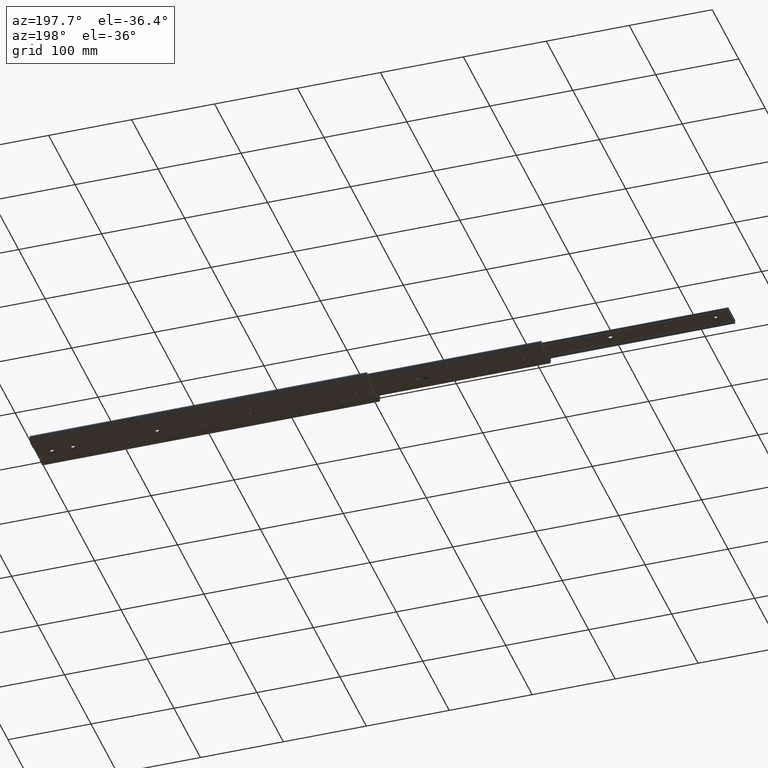
[diagram: clean part render]
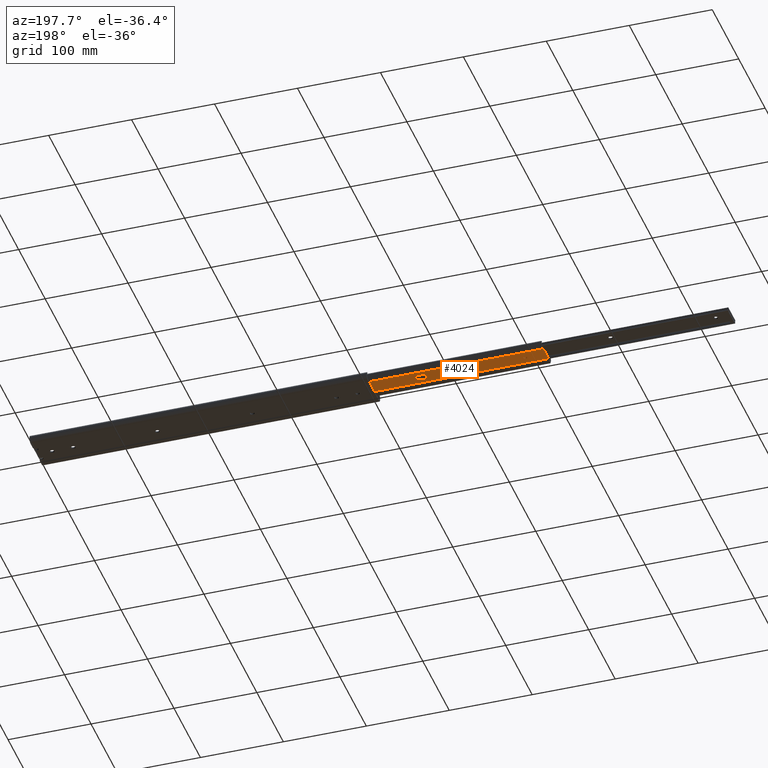
[diagram: same view with one face highlighted and labeled with its STEP entity id]
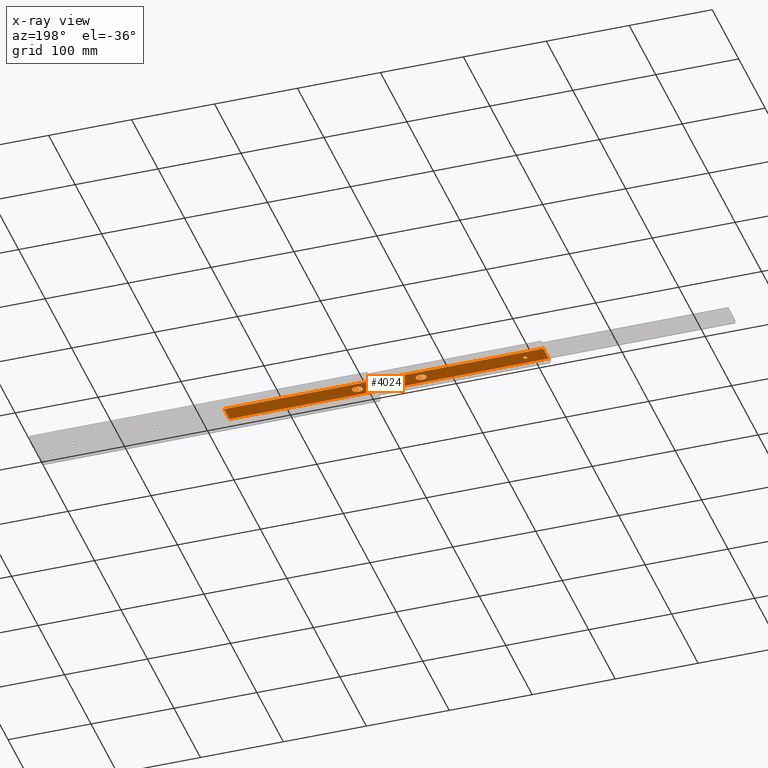
[diagram: x-ray of the same camera — body ghosted, the highlighted face saturated]
A machine part, auxiliary view. The second image highlights one B-rep face of the part: STEP entity #4024.
The next image is the same camera in x-ray: the body ghosted, the highlighted face saturated — about 0% of this face is hidden behind the body in this view.
In plain terms, the highlighted planar face has unit normal (0, -0, -1).
Its self-contained STEP definition (entity closure, byte-faithful):
#1 = DIRECTION ( 'NONE',  ( 0.0000000000000000000, -1.807003620809173600E-016, -1.000000000000000000 ) ) ;
#46 = EDGE_CURVE ( 'NONE', #221, #5983, #4062, .T. ) ;
#142 = VECTOR ( 'NONE', #5529, 1000.000000000000000 ) ;
#157 = EDGE_CURVE ( 'NONE', #5278, #4433, #1713, .T. ) ;
#180 = ORIENTED_EDGE ( 'NONE', *, *, #186, .F. ) ;
#186 = EDGE_CURVE ( 'NONE', #4433, #5344, #1522, .T. ) ;
#208 = DIRECTION ( 'NONE',  ( 0.0000000000000000000, -1.807003620809173600E-016, -1.000000000000000000 ) ) ;
#221 = VERTEX_POINT ( 'NONE', #2865 ) ;
#321 = AXIS2_PLACEMENT_3D ( 'NONE', #3986, #381, #1005 ) ;
#360 = ORIENTED_EDGE ( 'NONE', *, *, #4791, .T. ) ;
#380 = DIRECTION ( 'NONE',  ( 1.000000000000000000, 0.0000000000000000000, 0.0000000000000000000 ) ) ;
#381 = DIRECTION ( 'NONE',  ( 0.0000000000000000000, -1.807003620809173600E-016, -1.000000000000000000 ) ) ;
#383 = CARTESIAN_POINT ( 'NONE',  ( 27.25000000000000000, -5.307011471570957900E-016, 1.734723475976807100E-015 ) ) ;
#445 = DIRECTION ( 'NONE',  ( 0.0000000000000000000, -1.807003620809173600E-016, -1.000000000000000000 ) ) ;
#482 = DIRECTION ( 'NONE',  ( 0.0000000000000000000, -1.807003620809173600E-016, -1.000000000000000000 ) ) ;
#540 = DIRECTION ( 'NONE',  ( 0.0000000000000000000, 1.000000000000000000, -1.807003620809173400E-016 ) ) ;
#582 = CARTESIAN_POINT ( 'NONE',  ( 152.0000000000000900, -4.749999999999999100, 2.665330340693530800E-015 ) ) ;
#649 = CARTESIAN_POINT ( 'NONE',  ( 397.8999999999999800, -4.749999999999999100, 2.665330340693530800E-015 ) ) ;
#687 = EDGE_CURVE ( 'NONE', #7031, #5848, #1187, .T. ) ;
#826 = ORIENTED_EDGE ( 'NONE', *, *, #6501, .F. ) ;
#869 = EDGE_CURVE ( 'NONE', #4232, #6558, #1460, .T. ) ;
#954 = VECTOR ( 'NONE', #380, 1000.000000000000000 ) ;
#986 = DIRECTION ( 'NONE',  ( 0.0000000000000000000, -1.807003620809173600E-016, -1.000000000000000000 ) ) ;
#1005 = DIRECTION ( 'NONE',  ( 0.0000000000000000000, 1.000000000000000000, -1.807003620809172900E-016 ) ) ;
#1049 = CARTESIAN_POINT ( 'NONE',  ( 228.8000000000001000, 4.749999999999976900, 8.673617379884035500E-016 ) ) ;
#1145 = LINE ( 'NONE', #4608, #954 ) ;
#1177 = VERTEX_POINT ( 'NONE', #6529 ) ;
#1187 = LINE ( 'NONE', #5355, #3157 ) ;
#1441 = LINE ( 'NONE', #3207, #4458 ) ;
#1460 = CIRCLE ( 'NONE', #321, 2.249999999999999100 ) ;
#1522 = CIRCLE ( 'NONE', #4001, 4.750000000000000000 ) ;
#1609 = CIRCLE ( 'NONE', #5195, 2.249999999999999100 ) ;
#1622 = CARTESIAN_POINT ( 'NONE',  ( 228.8000000000000700, 8.764119566451890000E-015, 1.734723475976807100E-015 ) ) ;
#1699 = EDGE_CURVE ( 'NONE', #2635, #1878, #6650, .T. ) ;
#1713 = LINE ( 'NONE', #6831, #4728 ) ;
#1720 = AXIS2_PLACEMENT_3D ( 'NONE', #1622, #5855, #2239 ) ;
#1793 = CARTESIAN_POINT ( 'NONE',  ( 152.0000000000000900, 4.750000000000000000, 8.673617379884035500E-016 ) ) ;
#1878 = VERTEX_POINT ( 'NONE', #6760 ) ;
#1940 = ORIENTED_EDGE ( 'NONE', *, *, #46, .F. ) ;
#1960 = EDGE_LOOP ( 'NONE', ( #826, #1940, #3025, #2894, #6747 ) ) ;
#2120 = ORIENTED_EDGE ( 'NONE', *, *, #687, .F. ) ;
#2224 = EDGE_CURVE ( 'NONE', #2258, #7070, #1441, .T. ) ;
#2239 = DIRECTION ( 'NONE',  ( 0.0000000000000000000, 1.000000000000000000, -1.807003620809173400E-016 ) ) ;
#2258 = VERTEX_POINT ( 'NONE', #4423 ) ;
#2341 = AXIS2_PLACEMENT_3D ( 'NONE', #2897, #7117, #3499 ) ;
#2370 = VECTOR ( 'NONE', #3409, 1000.000000000000000 ) ;
#2397 = AXIS2_PLACEMENT_3D ( 'NONE', #3613, #1, #4223 ) ;
#2494 = VERTEX_POINT ( 'NONE', #1049 ) ;
#2526 = ORIENTED_EDGE ( 'NONE', *, *, #7508, .F. ) ;
#2613 = FACE_BOUND ( 'NONE', #5079, .T. ) ;
#2635 = VERTEX_POINT ( 'NONE', #582 ) ;
#2696 = EDGE_CURVE ( 'NONE', #6558, #4232, #1609, .T. ) ;
#2701 = EDGE_LOOP ( 'NONE', ( #5699, #360, #2120, #5653 ) ) ;
#2807 = CARTESIAN_POINT ( 'NONE',  ( 397.8999999999999800, 10.00000000000000000, 0.0000000000000000000 ) ) ;
#2865 = CARTESIAN_POINT ( 'NONE',  ( 228.8000000000001000, -4.750000000000023100, 2.665330340693535500E-015 ) ) ;
#2884 = CIRCLE ( 'NONE', #1720, 4.750000000000000000 ) ;
#2894 = ORIENTED_EDGE ( 'NONE', *, *, #5363, .F. ) ;
#2897 = CARTESIAN_POINT ( 'NONE',  ( 228.8000000000000700, 8.764119566451890000E-015, 1.734723475976807100E-015 ) ) ;
#2998 = AXIS2_PLACEMENT_3D ( 'NONE', #4082, #482, #4694 ) ;
#2999 = CARTESIAN_POINT ( 'NONE',  ( 148.8000000000000400, 4.750000000000000000, 8.673617379884035500E-016 ) ) ;
#3025 = ORIENTED_EDGE ( 'NONE', *, *, #4240, .F. ) ;
#3075 = CARTESIAN_POINT ( 'NONE',  ( 225.5999999999999900, -4.750000000000022200, 2.602085213965210600E-015 ) ) ;
#3123 = DIRECTION ( 'NONE',  ( 0.0000000000000000000, -1.807003620809173600E-016, -1.000000000000000000 ) ) ;
#3157 = VECTOR ( 'NONE', #5379, 1000.000000000000000 ) ;
#3173 = ORIENTED_EDGE ( 'NONE', *, *, #6032, .F. ) ;
#3207 = CARTESIAN_POINT ( 'NONE',  ( 384.9000000000000300, 10.00000000000000000, 0.0000000000000000000 ) ) ;
#3409 = DIRECTION ( 'NONE',  ( -1.000000000000000000, -0.0000000000000000000, -0.0000000000000000000 ) ) ;
#3424 = EDGE_CURVE ( 'NONE', #7710, #2494, #1145, .T. ) ;
#3430 = EDGE_CURVE ( 'NONE', #7070, #7031, #7170, .T. ) ;
#3478 = AXIS2_PLACEMENT_3D ( 'NONE', #7401, #208, #4429 ) ;
#3499 = DIRECTION ( 'NONE',  ( 0.0000000000000000000, 1.000000000000000000, -1.807003620809173400E-016 ) ) ;
#3613 = CARTESIAN_POINT ( 'NONE',  ( 225.5999999999999900, 8.568176078588316300E-015, 1.734723475976807100E-015 ) ) ;
#3646 = FACE_OUTER_BOUND ( 'NONE', #2701, .T. ) ;
#3986 = CARTESIAN_POINT ( 'NONE',  ( 25.00000000000000000, -5.307011471570958900E-016, 1.734723475976807100E-015 ) ) ;
#4001 = AXIS2_PLACEMENT_3D ( 'NONE', #7565, #986, #540 ) ;
#4024 = ADVANCED_FACE ( 'NONE', ( #2613, #5262, #5452, #3646 ), #6246, .T. ) ;
#4044 = CARTESIAN_POINT ( 'NONE',  ( 25.00000000000000000, -5.307011471570958900E-016, 1.734723475976807100E-015 ) ) ;
#4062 = LINE ( 'NONE', #6789, #7089 ) ;
#4082 = CARTESIAN_POINT ( 'NONE',  ( 148.8000000000000400, 1.730174874601383700E-014, 1.734723475976807100E-015 ) ) ;
#4223 = DIRECTION ( 'NONE',  ( 0.0000000000000000000, 1.000000000000000000, -1.807003620809173400E-016 ) ) ;
#4232 = VERTEX_POINT ( 'NONE', #383 ) ;
#4240 = EDGE_CURVE ( 'NONE', #1177, #221, #2884, .T. ) ;
#4297 = CARTESIAN_POINT ( 'NONE',  ( 397.8999999999999800, -10.00000000000000000, 3.614007241618347600E-015 ) ) ;
#4302 = AXIS2_PLACEMENT_3D ( 'NONE', #6757, #3123, #7343 ) ;
#4423 = CARTESIAN_POINT ( 'NONE',  ( 384.9000000000000300, -9.999999999999996400, 3.614007241618346800E-015 ) ) ;
#4429 = DIRECTION ( 'NONE',  ( 0.0000000000000000000, 1.000000000000000000, -1.807003620809173600E-016 ) ) ;
#4432 = ORIENTED_EDGE ( 'NONE', *, *, #157, .F. ) ;
#4433 = VERTEX_POINT ( 'NONE', #1793 ) ;
#4458 = VECTOR ( 'NONE', #6238, 1000.000000000000000 ) ;
#4608 = CARTESIAN_POINT ( 'NONE',  ( 397.8999999999999800, 4.749999999999976900, 9.486769009248203200E-016 ) ) ;
#4660 = DIRECTION ( 'NONE',  ( 0.0000000000000000000, 1.000000000000000000, -1.807003620809172900E-016 ) ) ;
#4694 = DIRECTION ( 'NONE',  ( 0.0000000000000000000, 1.000000000000000000, -1.807003620809173400E-016 ) ) ;
#4728 = VECTOR ( 'NONE', #5773, 1000.000000000000000 ) ;
#4791 = EDGE_CURVE ( 'NONE', #2258, #5848, #7595, .T. ) ;
#4859 = CARTESIAN_POINT ( 'NONE',  ( 22.75000000000000400, -2.551556173489413600E-016, 1.734723475976807100E-015 ) ) ;
#4935 = CIRCLE ( 'NONE', #4302, 4.750000000000000000 ) ;
#5038 = VECTOR ( 'NONE', #7831, 1000.000000000000000 ) ;
#5079 = EDGE_LOOP ( 'NONE', ( #5374, #7122 ) ) ;
#5195 = AXIS2_PLACEMENT_3D ( 'NONE', #4044, #445, #4660 ) ;
#5262 = FACE_BOUND ( 'NONE', #7529, .T. ) ;
#5278 = VERTEX_POINT ( 'NONE', #2999 ) ;
#5289 = CARTESIAN_POINT ( 'NONE',  ( 156.7500000000000900, 1.749769223387741700E-014, 1.734723475976807100E-015 ) ) ;
#5344 = VERTEX_POINT ( 'NONE', #5289 ) ;
#5355 = CARTESIAN_POINT ( 'NONE',  ( 0.0000000000000000000, 10.00000000000000000, 0.0000000000000000000 ) ) ;
#5363 = EDGE_CURVE ( 'NONE', #2494, #1177, #5428, .T. ) ;
#5374 = ORIENTED_EDGE ( 'NONE', *, *, #869, .F. ) ;
#5379 = DIRECTION ( 'NONE',  ( 0.0000000000000000000, -1.000000000000000000, 1.807003620809173900E-016 ) ) ;
#5422 = CARTESIAN_POINT ( 'NONE',  ( 0.0000000000000000000, 10.00000000000000000, 0.0000000000000000000 ) ) ;
#5428 = CIRCLE ( 'NONE', #2341, 4.750000000000000000 ) ;
#5443 = DIRECTION ( 'NONE',  ( -1.000000000000000000, 0.0000000000000000000, 0.0000000000000000000 ) ) ;
#5452 = FACE_BOUND ( 'NONE', #1960, .T. ) ;
#5529 = DIRECTION ( 'NONE',  ( -1.000000000000000000, -0.0000000000000000000, -0.0000000000000000000 ) ) ;
#5653 = ORIENTED_EDGE ( 'NONE', *, *, #3430, .F. ) ;
#5699 = ORIENTED_EDGE ( 'NONE', *, *, #2224, .F. ) ;
#5773 = DIRECTION ( 'NONE',  ( 1.000000000000000000, 0.0000000000000000000, 0.0000000000000000000 ) ) ;
#5848 = VERTEX_POINT ( 'NONE', #6577 ) ;
#5855 = DIRECTION ( 'NONE',  ( 0.0000000000000000000, -1.807003620809173600E-016, -1.000000000000000000 ) ) ;
#5983 = VERTEX_POINT ( 'NONE', #3075 ) ;
#6032 = EDGE_CURVE ( 'NONE', #5344, #2635, #4935, .T. ) ;
#6059 = ORIENTED_EDGE ( 'NONE', *, *, #1699, .F. ) ;
#6238 = DIRECTION ( 'NONE',  ( 0.0000000000000000000, 1.000000000000000000, -1.807003620809173600E-016 ) ) ;
#6246 = PLANE ( 'NONE',  #3478 ) ;
#6501 = EDGE_CURVE ( 'NONE', #5983, #7710, #7751, .T. ) ;
#6529 = CARTESIAN_POINT ( 'NONE',  ( 233.5500000000000700, 8.764119566451890000E-015, 1.734723475976807100E-015 ) ) ;
#6558 = VERTEX_POINT ( 'NONE', #4859 ) ;
#6577 = CARTESIAN_POINT ( 'NONE',  ( 0.0000000000000000000, -10.00000000000000000, 3.614007241618347600E-015 ) ) ;
#6650 = LINE ( 'NONE', #649, #5038 ) ;
#6697 = CIRCLE ( 'NONE', #2998, 4.750000000000000000 ) ;
#6710 = CARTESIAN_POINT ( 'NONE',  ( 225.5999999999999900, 4.749999999999976900, 8.673617379884035500E-016 ) ) ;
#6747 = ORIENTED_EDGE ( 'NONE', *, *, #3424, .F. ) ;
#6757 = CARTESIAN_POINT ( 'NONE',  ( 152.0000000000000900, 1.749769223387741700E-014, 1.734723475976807100E-015 ) ) ;
#6760 = CARTESIAN_POINT ( 'NONE',  ( 148.8000000000000400, -4.750000000000000000, 2.602085213965210600E-015 ) ) ;
#6789 = CARTESIAN_POINT ( 'NONE',  ( 397.8999999999999800, -4.750000000000023100, 2.665330340693535500E-015 ) ) ;
#6831 = CARTESIAN_POINT ( 'NONE',  ( 397.8999999999999800, 4.750000000000000000, 9.486769009248161800E-016 ) ) ;
#7031 = VERTEX_POINT ( 'NONE', #5422 ) ;
#7070 = VERTEX_POINT ( 'NONE', #7251 ) ;
#7089 = VECTOR ( 'NONE', #5443, 1000.000000000000000 ) ;
#7117 = DIRECTION ( 'NONE',  ( 0.0000000000000000000, -1.807003620809173600E-016, -1.000000000000000000 ) ) ;
#7122 = ORIENTED_EDGE ( 'NONE', *, *, #2696, .F. ) ;
#7170 = LINE ( 'NONE', #2807, #2370 ) ;
#7251 = CARTESIAN_POINT ( 'NONE',  ( 384.9000000000000300, 10.00000000000000000, -2.168404344971008900E-016 ) ) ;
#7343 = DIRECTION ( 'NONE',  ( 0.0000000000000000000, 1.000000000000000000, -1.807003620809173400E-016 ) ) ;
#7401 = CARTESIAN_POINT ( 'NONE',  ( 397.8999999999999800, 10.00000000000000000, 0.0000000000000000000 ) ) ;
#7508 = EDGE_CURVE ( 'NONE', #1878, #5278, #6697, .T. ) ;
#7529 = EDGE_LOOP ( 'NONE', ( #2526, #6059, #3173, #180, #4432 ) ) ;
#7565 = CARTESIAN_POINT ( 'NONE',  ( 152.0000000000000900, 1.749769223387741700E-014, 1.734723475976807100E-015 ) ) ;
#7595 = LINE ( 'NONE', #4297, #142 ) ;
#7710 = VERTEX_POINT ( 'NONE', #6710 ) ;
#7751 = CIRCLE ( 'NONE', #2397, 4.750000000000000000 ) ;
#7831 = DIRECTION ( 'NONE',  ( -1.000000000000000000, 0.0000000000000000000, 0.0000000000000000000 ) ) ;